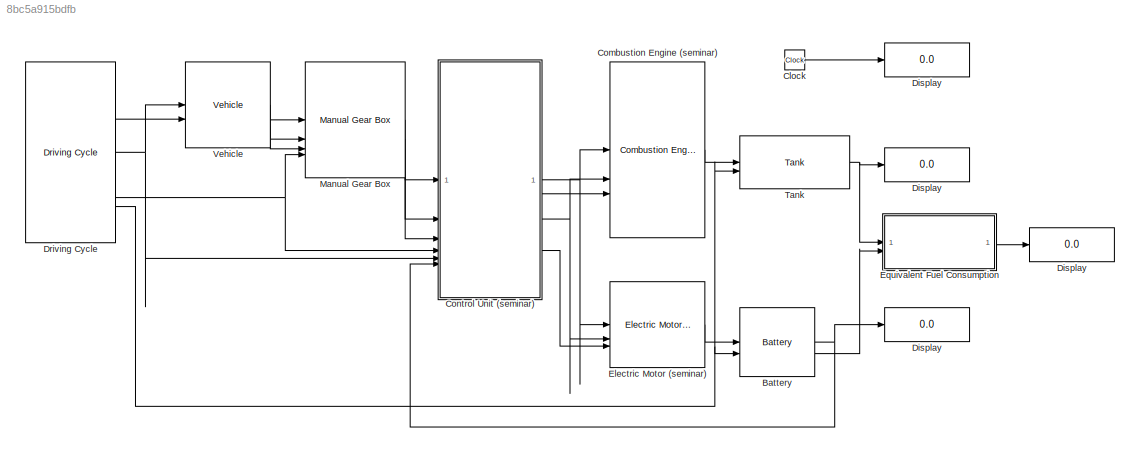
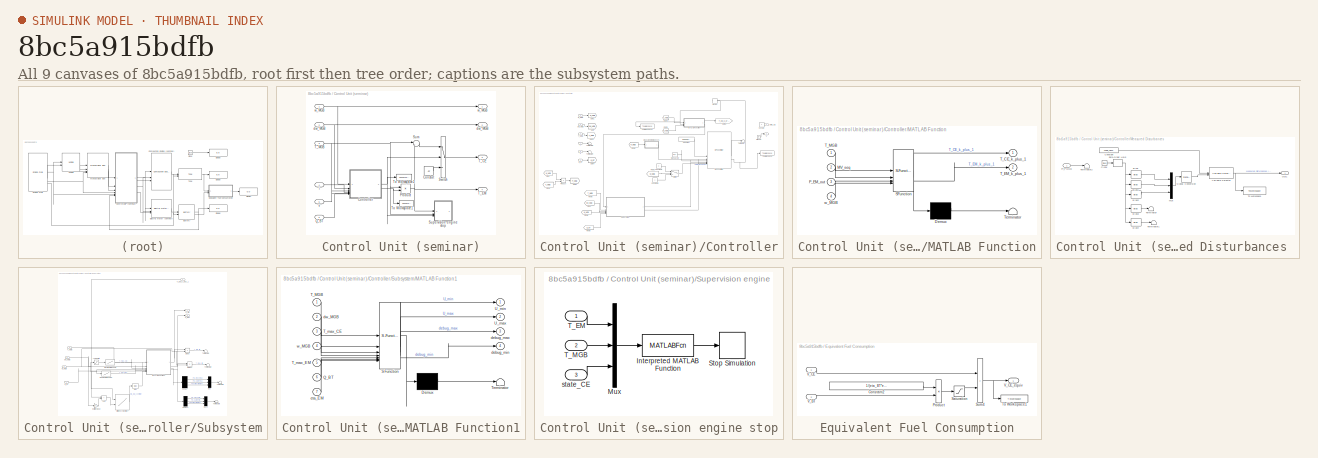
[diagram: thumbnail index - all 9 canvases of the model, root first then tree order]
MODEL slx_8bc5a915bdfb
KIND model
CONFIG AbsTol = auto
CONFIG EnableMultiTasking = on
CONFIG FixedStep = auto
CONFIG MaxStep = auto
CONFIG MinStep = auto
CONFIG RelTol = 1e-3
CONFIG SampleTimeConstraint = Unconstrained
CONFIG SolverName = VariableStepDiscrete
CONFIG StartTime = 0.0
CONFIG StopTime = 1220
BLOCK [Display]    Display   
  Decimation = 1
BLOCK [Display]   Display  
  Decimation = 1
BLOCK [Display]  Display 
  Decimation = 1
BLOCK [Reference] Battery  REF=qss_tb_library/Energy Buffer/Battery  (lib defined in mdl_a75e96b0ff2a, mdl_aad2a3137e65)
  SourceBlock = qss_tb_library/Energy Buffer/Battery
  SourceType = Battery
  Tag = battery
BLOCK [Clock] Clock
BLOCK [Reference] Combustion Engine (seminar)  REF=qss_tb_library/Energy Converter/Combustion Engine  (lib defined in mdl_a75e96b0ff2a, mdl_aad2a3137e65)
(consumption map)
  SourceBlock = qss_tb_library/Energy Converter/Combustion Engine\n(consumption map)
  SourceType = Combustion Engine (based on consumption map)
  Tag = combustion engine
BLOCK [SubSystem] Control Unit (seminar)
  Tag = control unit
BLOCK [Outport] Control Unit (seminar)/ dw_MGB 
  InitialOutput = 0
  Port = 2
BLOCK [Outport] Control Unit (seminar)/ w_MGB 
  InitialOutput = 0
BLOCK [Constant] Control Unit (seminar)/Constat
  Value = -inf
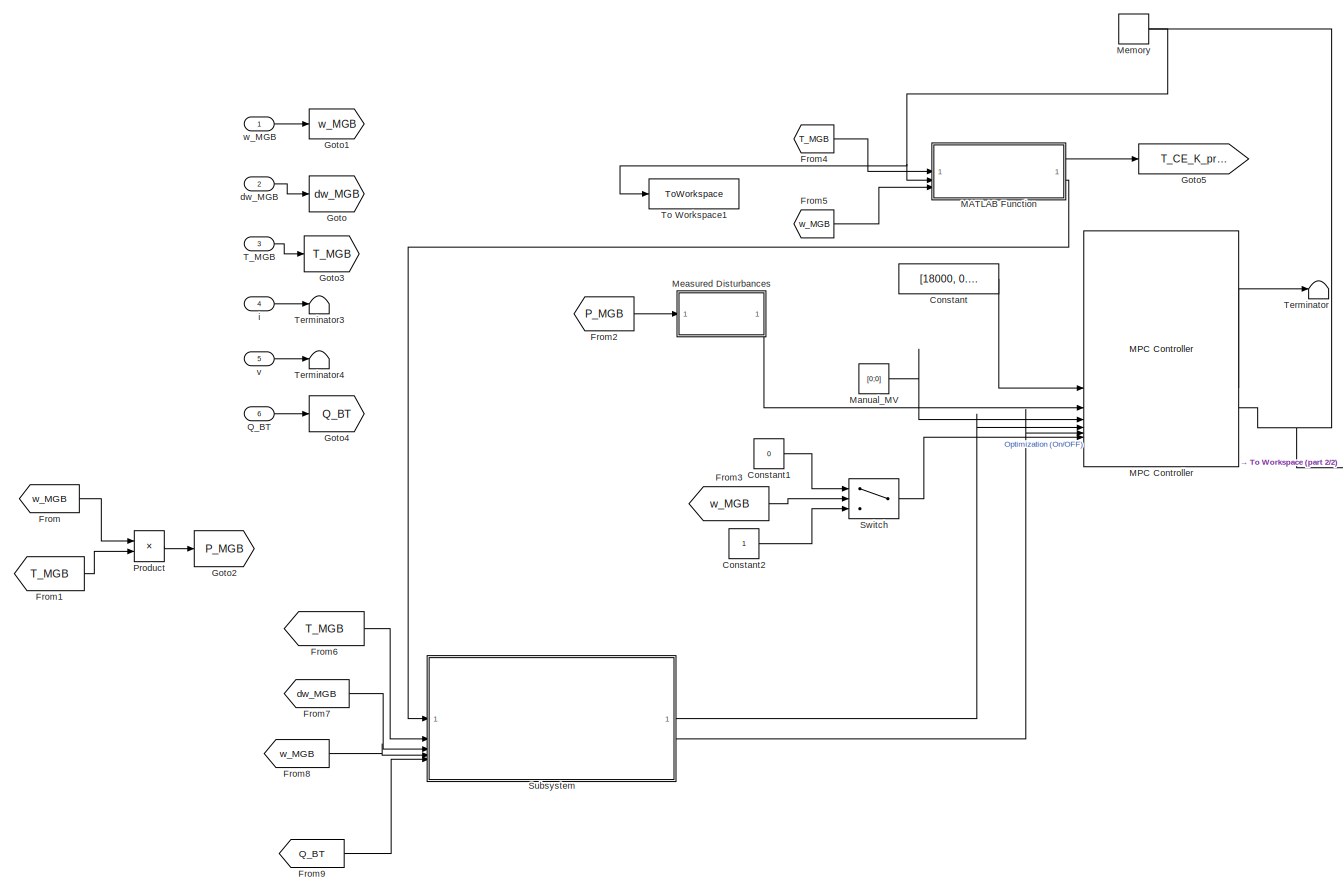
[diagram: Control Unit (seminar)/Controller - part 1/2, most of the canvas]
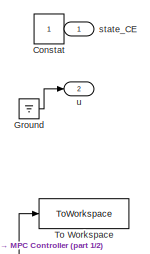
[diagram: Control Unit (seminar)/Controller - part 2/2, top right region]
BLOCK [SubSystem] Control Unit (seminar)/Controller
  TreatAsAtomicUnit = on
BLOCK [Constant] Control Unit (seminar)/Controller/Constant
  Value = [18000,  0.01]
BLOCK [Constant] Control Unit (seminar)/Controller/Constant1
  Value = 0
BLOCK [Constant] Control Unit (seminar)/Controller/Constant2
BLOCK [Constant] Control Unit (seminar)/Controller/Constat
BLOCK [From] Control Unit (seminar)/Controller/From
  GotoTag = w_MGB
BLOCK [From] Control Unit (seminar)/Controller/From1
  GotoTag = T_MGB
BLOCK [From] Control Unit (seminar)/Controller/From2
  GotoTag = P_MGB
BLOCK [From] Control Unit (seminar)/Controller/From3
  GotoTag = w_MGB
BLOCK [From] Control Unit (seminar)/Controller/From4
  GotoTag = T_MGB
BLOCK [From] Control Unit (seminar)/Controller/From5
  GotoTag = w_MGB
BLOCK [From] Control Unit (seminar)/Controller/From6
  GotoTag = T_MGB
BLOCK [From] Control Unit (seminar)/Controller/From7
  GotoTag = dw_MGB
BLOCK [From] Control Unit (seminar)/Controller/From8
  GotoTag = w_MGB
BLOCK [From] Control Unit (seminar)/Controller/From9
  GotoTag = Q_BT
BLOCK [Goto] Control Unit (seminar)/Controller/Goto
  GotoTag = dw_MGB
BLOCK [Goto] Control Unit (seminar)/Controller/Goto1
  GotoTag = w_MGB
BLOCK [Goto] Control Unit (seminar)/Controller/Goto2
  GotoTag = P_MGB
BLOCK [Goto] Control Unit (seminar)/Controller/Goto3
  GotoTag = T_MGB
BLOCK [Goto] Control Unit (seminar)/Controller/Goto4
  GotoTag = Q_BT
BLOCK [Goto] Control Unit (seminar)/Controller/Goto5
  GotoTag = T_CE_K_predicted
BLOCK [Ground] Control Unit (seminar)/Controller/Ground
BLOCK [SubSystem] Control Unit (seminar)/Controller/MATLAB Function
  ErrorFcn = Stateflow.Translate.translate
  PermitHierarchicalResolution = ExplicitOnly
  SFBlockType = MATLAB Function
  TreatAsAtomicUnit = on
BLOCK [Demux] Control Unit (seminar)/Controller/MATLAB Function/ Demux 
  Outputs = 1
BLOCK [S-Function] Control Unit (seminar)/Controller/MATLAB Function/ SFunction 
  EnableBusSupport = off
  FunctionName = sf_sfun
  PortCounts = [4 3]
  SFcnIsStateOwnerBlock = off
  SFunctionDeploymentMode = off
  Tag = Stateflow S-Function 2
BLOCK [Terminator] Control Unit (seminar)/Controller/MATLAB Function/ Terminator 
BLOCK [Inport] Control Unit (seminar)/Controller/MATLAB Function/MV_seq
  Port = 2
BLOCK [Inport] Control Unit (seminar)/Controller/MATLAB Function/P_EM_out
  Port = 3
BLOCK [Outport] Control Unit (seminar)/Controller/MATLAB Function/T_CE_k_plus_1
BLOCK [Outport] Control Unit (seminar)/Controller/MATLAB Function/T_EM_k_plus_1
  Port = 2
BLOCK [Inport] Control Unit (seminar)/Controller/MATLAB Function/T_MGB
BLOCK [Inport] Control Unit (seminar)/Controller/MATLAB Function/w_MGB
  Port = 4
BLOCK [Reference] Control Unit (seminar)/Controller/MPC Controller  REF=mpclib/MPC Controller  (lib defined in mdl_ae329e0e0455)
  SCDEnableBlockLinearizationSpecification = on
  SourceBlock = mpclib/MPC Controller
  SourceType = MPC
BLOCK [Constant] Control Unit (seminar)/Controller/Manual_MV
  Value = [0;0]
  VectorParams1D = off
BLOCK [SubSystem] Control Unit (seminar)/Controller/Measured Disturbances 
BLOCK [Bias] Control Unit (seminar)/Controller/Measured Disturbances /Bias
  Bias = 1
  SaturateOnIntegerOverflow = off
BLOCK [Bias] Control Unit (seminar)/Controller/Measured Disturbances /Bias1
  Bias = 2
  SaturateOnIntegerOverflow = off
BLOCK [Bias] Control Unit (seminar)/Controller/Measured Disturbances /Bias2
  Bias = 3
  SaturateOnIntegerOverflow = off
BLOCK [Bias] Control Unit (seminar)/Controller/Measured Disturbances /Bias3
  Bias = 4
  SaturateOnIntegerOverflow = off
BLOCK [Bias] Control Unit (seminar)/Controller/Measured Disturbances /Bias4
  Bias = 5
  SaturateOnIntegerOverflow = off
BLOCK [Clock] Control Unit (seminar)/Controller/Measured Disturbances /Clock
  Decimation = 1
BLOCK [Constant] Control Unit (seminar)/Controller/Measured Disturbances /Constant
  Value = PMGB_NEDC
BLOCK [Inport] Control Unit (seminar)/Controller/Measured Disturbances /FT_PMGB
BLOCK [Mux] Control Unit (seminar)/Controller/Measured Disturbances /Mux
  DisplayOption = bar
  Inputs = 3
BLOCK [Outport] Control Unit (seminar)/Controller/Measured Disturbances /Out1
BLOCK [SignalConversion] Control Unit (seminar)/Controller/Measured Disturbances /Signal Conversion
  OverrideOpt = off
BLOCK [Terminator] Control Unit (seminar)/Controller/Measured Disturbances /Terminator
BLOCK [Terminator] Control Unit (seminar)/Controller/Measured Disturbances /Terminator1
BLOCK [Terminator] Control Unit (seminar)/Controller/Measured Disturbances /Terminator2
BLOCK [ToWorkspace] Control Unit (seminar)/Controller/Measured Disturbances /To Workspace
  FixptAsFi = on
  MaxDataPoints = inf
  SampleTime = -1
  SaveFormat = Timeseries
  VariableName = simout
BLOCK [Reference] Control Unit (seminar)/Controller/Measured Disturbances /Variable Selector  REF=dspindex/Variable
Selector
  SourceBlock = dspindex/Variable\nSelector
  SourceType = Variable Selector
BLOCK [ZeroOrderHold] Control Unit (seminar)/Controller/Measured Disturbances /Zero-Order Hold
  SampleTime = -1
BLOCK [Memory] Control Unit (seminar)/Controller/Memory
BLOCK [Product] Control Unit (seminar)/Controller/Product
BLOCK [Inport] Control Unit (seminar)/Controller/Q_BT
  Port = 6
BLOCK [SubSystem] Control Unit (seminar)/Controller/Subsystem
BLOCK [Sum] Control Unit (seminar)/Controller/Subsystem/Add
  IconShape = rectangular
BLOCK [Bias] Control Unit (seminar)/Controller/Subsystem/Bias
  Bias = 0.15
  SaturateOnIntegerOverflow = off
BLOCK [Demux] Control Unit (seminar)/Controller/Subsystem/Demux
  Outputs = 3
BLOCK [Demux] Control Unit (seminar)/Controller/Subsystem/Demux1
  Outputs = 3
BLOCK [Product] Control Unit (seminar)/Controller/Subsystem/Divide
  Inputs = */
BLOCK [Product] Control Unit (seminar)/Controller/Subsystem/Divide1
  Inputs = */
BLOCK [Lookup2D] Control Unit (seminar)/Controller/Subsystem/Efficiency eta = f(w, T)
  ColumnIndex = T_EM_col
  InputSameDT = off
  RowIndex = w_EM_row
  Table = eta_EM_map
BLOCK [Gain] Control Unit (seminar)/Controller/Subsystem/Inertial Torque
  Gain = 0.1
BLOCK [Saturate] Control Unit (seminar)/Controller/Subsystem/Lower Limit
  LowerLimit = 105
  UpperLimit = inf
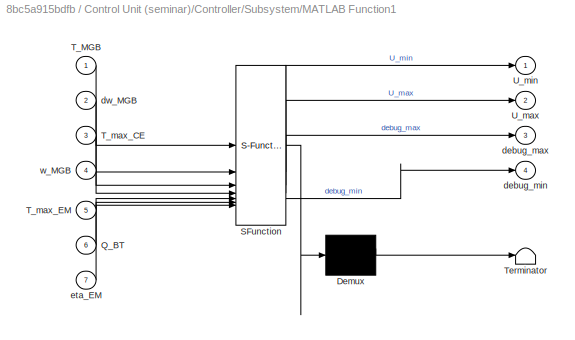
BLOCK [SubSystem] Control Unit (seminar)/Controller/Subsystem/MATLAB Function1
  ErrorFcn = Stateflow.Translate.translate
  PermitHierarchicalResolution = ExplicitOnly
  SFBlockType = MATLAB Function
  TreatAsAtomicUnit = on
BLOCK [Demux] Control Unit (seminar)/Controller/Subsystem/MATLAB Function1/ Demux 
  Outputs = 1
BLOCK [S-Function] Control Unit (seminar)/Controller/Subsystem/MATLAB Function1/ SFunction 
  EnableBusSupport = off
  FunctionName = sf_sfun
  PortCounts = [7 5]
  SFcnIsStateOwnerBlock = off
  SFunctionDeploymentMode = off
  Tag = Stateflow S-Function 1
BLOCK [Terminator] Control Unit (seminar)/Controller/Subsystem/MATLAB Function1/ Terminator 
BLOCK [Inport] Control Unit (seminar)/Controller/Subsystem/MATLAB Function1/Q_BT
  Port = 6
BLOCK [Inport] Control Unit (seminar)/Controller/Subsystem/MATLAB Function1/T_MGB
BLOCK [Inport] Control Unit (seminar)/Controller/Subsystem/MATLAB Function1/T_max_CE
  Port = 3
BLOCK [Inport] Control Unit (seminar)/Controller/Subsystem/MATLAB Function1/T_max_EM
  Port = 5
BLOCK [Outport] Control Unit (seminar)/Controller/Subsystem/MATLAB Function1/U_max
  Port = 2
BLOCK [Outport] Control Unit (seminar)/Controller/Subsystem/MATLAB Function1/U_min
BLOCK [Outport] Control Unit (seminar)/Controller/Subsystem/MATLAB Function1/debug_max
  Port = 3
BLOCK [Outport] Control Unit (seminar)/Controller/Subsystem/MATLAB Function1/debug_min
  Port = 4
BLOCK [Inport] Control Unit (seminar)/Controller/Subsystem/MATLAB Function1/dw_MGB
  Port = 2
BLOCK [Inport] Control Unit (seminar)/Controller/Subsystem/MATLAB Function1/eta_EM
  Port = 7
BLOCK [Inport] Control Unit (seminar)/Controller/Subsystem/MATLAB Function1/w_MGB
  Port = 4
BLOCK [Lookup] Control Unit (seminar)/Controller/Subsystem/Maximum torque CE
  InputValues = w_CE_max
  Table = T_CE_max
BLOCK [Lookup] Control Unit (seminar)/Controller/Subsystem/Maximum torque EM
  InputValues = w_EM_row
  Table = T_EM_max
BLOCK [Mux] Control Unit (seminar)/Controller/Subsystem/Mux
  DisplayOption = bar
  Inputs = 3
BLOCK [Mux] Control Unit (seminar)/Controller/Subsystem/Mux1
  DisplayOption = bar
  Inputs = 3
BLOCK [Inport] Control Unit (seminar)/Controller/Subsystem/Q_BT
  Port = 5
BLOCK [Inport] Control Unit (seminar)/Controller/Subsystem/T_EM_k_plus_1
BLOCK [Inport] Control Unit (seminar)/Controller/Subsystem/T_MGB
  Port = 2
BLOCK [Terminator] Control Unit (seminar)/Controller/Subsystem/Terminator1
BLOCK [Terminator] Control Unit (seminar)/Controller/Subsystem/Terminator2
BLOCK [Terminator] Control Unit (seminar)/Controller/Subsystem/Terminator5
BLOCK [Terminator] Control Unit (seminar)/Controller/Subsystem/Terminator6
BLOCK [Outport] Control Unit (seminar)/Controller/Subsystem/U_max
  Port = 2
BLOCK [Outport] Control Unit (seminar)/Controller/Subsystem/U_min
BLOCK [Inport] Control Unit (seminar)/Controller/Subsystem/dw_MGB
  Port = 3
BLOCK [Inport] Control Unit (seminar)/Controller/Subsystem/w_MGB
  Port = 4
BLOCK [Switch] Control Unit (seminar)/Controller/Switch
  Criteria = u2 ~= 0
  InputSameDT = off
  SaturateOnIntegerOverflow = off
BLOCK [Inport] Control Unit (seminar)/Controller/T_MGB
  Port = 3
BLOCK [Terminator] Control Unit (seminar)/Controller/Terminator
BLOCK [Terminator] Control Unit (seminar)/Controller/Terminator3
BLOCK [Terminator] Control Unit (seminar)/Controller/Terminator4
BLOCK [ToWorkspace] Control Unit (seminar)/Controller/To Workspace
  FixptAsFi = on
  MaxDataPoints = inf
  SampleTime = -1
  SaveFormat = Timeseries
  VariableName = mv_sequence
BLOCK [ToWorkspace] Control Unit (seminar)/Controller/To Workspace1
  FixptAsFi = on
  MaxDataPoints = inf
  SampleTime = -1
  SaveFormat = Timeseries
  VariableName = mv_sequence_delay
BLOCK [Inport] Control Unit (seminar)/Controller/dw_MGB
  Port = 2
BLOCK [Inport] Control Unit (seminar)/Controller/i
  Port = 4
BLOCK [Outport] Control Unit (seminar)/Controller/state_CE
  InitialOutput = 0
BLOCK [Outport] Control Unit (seminar)/Controller/u
  InitialOutput = 0
  Port = 2
BLOCK [Inport] Control Unit (seminar)/Controller/v
  Port = 5
BLOCK [Inport] Control Unit (seminar)/Controller/w_MGB
BLOCK [Product] Control Unit (seminar)/Product
  RndMeth = Zero
BLOCK [Inport] Control Unit (seminar)/Q_BT
  Port = 6
BLOCK [Sum] Control Unit (seminar)/Sum
  Inputs = |+-
BLOCK [SubSystem] Control Unit (seminar)/Supervision engine stop
BLOCK [MATLABFcn] Control Unit (seminar)/Supervision engine stop/Interpreted MATLAB Function
  MATLABFcn = supervision_engine_stop
BLOCK [Mux] Control Unit (seminar)/Supervision engine stop/Mux
  DisplayOption = bar
  Inputs = 3
BLOCK [Stop] Control Unit (seminar)/Supervision engine stop/Stop Simulation
BLOCK [Inport] Control Unit (seminar)/Supervision engine stop/T_EM
BLOCK [Inport] Control Unit (seminar)/Supervision engine stop/T_MGB
  Port = 2
BLOCK [Inport] Control Unit (seminar)/Supervision engine stop/state_CE
  Port = 3
BLOCK [Switch] Control Unit (seminar)/Switch
  InputSameDT = off
  SaturateOnIntegerOverflow = off
  Threshold = 0.5
BLOCK [Outport] Control Unit (seminar)/T_CE
  InitialOutput = 0
  Port = 3
BLOCK [Outport] Control Unit (seminar)/T_EM
  InitialOutput = 0
  Port = 4
BLOCK [Inport] Control Unit (seminar)/T_MGB
  Port = 3
BLOCK [ToWorkspace] Control Unit (seminar)/To Workspace1
  MaxDataPoints = inf
  NameLocation = top
  SampleTime = -1
  VariableName = u
BLOCK [ToWorkspace] Control Unit (seminar)/To Workspace2
  MaxDataPoints = inf
  NameLocation = top
  SampleTime = -1
  VariableName = state_CE
BLOCK [Inport] Control Unit (seminar)/dw_MGB
  Port = 2
BLOCK [Inport] Control Unit (seminar)/i
  Port = 4
BLOCK [Inport] Control Unit (seminar)/v
  Port = 5
BLOCK [Inport] Control Unit (seminar)/w_MGB
BLOCK [Display] Display
  Decimation = 1
BLOCK [Reference] Driving Cycle  REF=qss_tb_library/Driving Cycle/Driving Cycle  (lib defined in mdl_a75e96b0ff2a, mdl_aad2a3137e65)
  SourceBlock = qss_tb_library/Driving Cycle/Driving Cycle
  SourceType = Driving Cycle
  Tag = cycle
BLOCK [Reference] Electric Motor (seminar)  REF=qss_tb_library/Energy Converter/Electric Motor  (lib defined in mdl_a75e96b0ff2a, mdl_aad2a3137e65)
(seminar)
  SourceBlock = qss_tb_library/Energy Converter/Electric Motor\n(seminar)
  SourceType = Electric Motor
BLOCK [SubSystem] Equivalent Fuel Consumption
BLOCK [Constant] Equivalent Fuel Consumption/Constant2
  Value = 1/(eta_BT*eta_EM*eta_CE*H_u/(1000*3600)*rho_f)
BLOCK [Product] Equivalent Fuel Consumption/Product
  RndMeth = Zero
BLOCK [Saturate] Equivalent Fuel Consumption/Saturation
  LowerLimit = 0
  UpperLimit = inf
BLOCK [Sum] Equivalent Fuel Consumption/Sum4
  IconShape = rectangular
  InputSameDT = on
  OutDataTypeStr = Inherit: Same as first input
  SaturateOnIntegerOverflow = on
BLOCK [ToWorkspace] Equivalent Fuel Consumption/To Workspace1
  MaxDataPoints = inf
  NameLocation = top
  SampleTime = -1
  VariableName = V_CE_equiv
BLOCK [Inport] Equivalent Fuel Consumption/V_BT
  Port = 2
BLOCK [Inport] Equivalent Fuel Consumption/V_CE
BLOCK [Outport] Equivalent Fuel Consumption/V_CE_equiv
BLOCK [Reference] Manual Gear Box  REF=qss_tb_library/Gear System/Manual Gear Box  (lib defined in mdl_a75e96b0ff2a, mdl_aad2a3137e65)
  SourceBlock = qss_tb_library/Gear System/Manual Gear Box
  SourceType = Manual Gear Box
  Tag = transmission
BLOCK [Reference] Tank  REF=qss_tb_library/Energy Source/Tank  (lib defined in mdl_a75e96b0ff2a, mdl_aad2a3137e65)
  SourceBlock = qss_tb_library/Energy Source/Tank
  SourceType = Tank
  Tag = tank
BLOCK [Reference] Vehicle  REF=qss_tb_library/Vehicle/Vehicle  (lib defined in mdl_a75e96b0ff2a, mdl_aad2a3137e65)
  SourceBlock = qss_tb_library/Vehicle/Vehicle
  SourceType = Vehicle
  Tag = vehicle
NET Battery:1 ->   Display  :1, Control Unit (seminar):6
LINE Battery:2 -> Equivalent Fuel Consumption:2
LINE Clock:1 ->  Display :1
LINE Combustion Engine (seminar):1 -> Tank:1
LINE Control Unit (seminar)/Constat:1 -> Control Unit (seminar)/Switch:3
LINE Control Unit (seminar)/Controller/Constant1:1 -> Control Unit (seminar)/Controller/Switch:1
LINE Control Unit (seminar)/Controller/Constant2:1 -> Control Unit (seminar)/Controller/Switch:3
LINE Control Unit (seminar)/Controller/Constant:1 -> Control Unit (seminar)/Controller/MPC Controller:2
LINE Control Unit (seminar)/Controller/Constat:1 -> Control Unit (seminar)/Controller/state_CE:1
LINE Control Unit (seminar)/Controller/From1:1 -> Control Unit (seminar)/Controller/Product:2
LINE Control Unit (seminar)/Controller/From2:1 -> Control Unit (seminar)/Controller/Measured Disturbances :1
LINE Control Unit (seminar)/Controller/From3:1 -> Control Unit (seminar)/Controller/Switch:2
LINE Control Unit (seminar)/Controller/From4:1 -> Control Unit (seminar)/Controller/MATLAB Function:1
LINE Control Unit (seminar)/Controller/From5:1 -> Control Unit (seminar)/Controller/MATLAB Function:4
LINE Control Unit (seminar)/Controller/From6:1 -> Control Unit (seminar)/Controller/Subsystem:2
LINE Control Unit (seminar)/Controller/From7:1 -> Control Unit (seminar)/Controller/Subsystem:3
LINE Control Unit (seminar)/Controller/From8:1 -> Control Unit (seminar)/Controller/Subsystem:4
LINE Control Unit (seminar)/Controller/From9:1 -> Control Unit (seminar)/Controller/Subsystem:5
LINE Control Unit (seminar)/Controller/From:1 -> Control Unit (seminar)/Controller/Product:1
LINE Control Unit (seminar)/Controller/Ground:1 -> Control Unit (seminar)/Controller/u:1
LINE Control Unit (seminar)/Controller/MATLAB Function:1 -> Control Unit (seminar)/Controller/Goto5:1
LINE Control Unit (seminar)/Controller/MATLAB Function:2 -> Control Unit (seminar)/Controller/Subsystem:1
LINE Control Unit (seminar)/Controller/MPC Controller:2 -> Control Unit (seminar)/Controller/Terminator:1
NET Control Unit (seminar)/Controller/MPC Controller:3 -> Control Unit (seminar)/Controller/Memory:1, Control Unit (seminar)/Controller/To Workspace:1
LINE Control Unit (seminar)/Controller/Manual_MV:1 -> Control Unit (seminar)/Controller/MPC Controller:4
LINE Control Unit (seminar)/Controller/Measured Disturbances /Bias1:1 -> Control Unit (seminar)/Controller/Measured Disturbances /Mux:2
LINE Control Unit (seminar)/Controller/Measured Disturbances /Bias2:1 -> Control Unit (seminar)/Controller/Measured Disturbances /Mux:3
LINE Control Unit (seminar)/Controller/Measured Disturbances /Bias3:1 -> Control Unit (seminar)/Controller/Measured Disturbances /Terminator:1
LINE Control Unit (seminar)/Controller/Measured Disturbances /Bias4:1 -> Control Unit (seminar)/Controller/Measured Disturbances /Terminator1:1
LINE Control Unit (seminar)/Controller/Measured Disturbances /Bias:1 -> Control Unit (seminar)/Controller/Measured Disturbances /Mux:1
LINE Control Unit (seminar)/Controller/Measured Disturbances /Clock:1 -> Control Unit (seminar)/Controller/Measured Disturbances /Zero-Order Hold:1
LINE Control Unit (seminar)/Controller/Measured Disturbances /Constant:1 -> Control Unit (seminar)/Controller/Measured Disturbances /Variable Selector:1
LINE Control Unit (seminar)/Controller/Measured Disturbances /FT_PMGB:1 -> Control Unit (seminar)/Controller/Measured Disturbances /Terminator2:1
LINE Control Unit (seminar)/Controller/Measured Disturbances /Mux:1 -> Control Unit (seminar)/Controller/Measured Disturbances /Signal Conversion:1
LINE Control Unit (seminar)/Controller/Measured Disturbances /Signal Conversion:1 -> Control Unit (seminar)/Controller/Measured Disturbances /Variable Selector:2
NET Control Unit (seminar)/Controller/Measured Disturbances /Variable Selector:1 -> Control Unit (seminar)/Controller/Measured Disturbances /Out1:1, Control Unit (seminar)/Controller/Measured Disturbances /To Workspace:1
NET Control Unit (seminar)/Controller/Measured Disturbances /Zero-Order Hold:1 -> Control Unit (seminar)/Controller/Measured Disturbances /Bias1:1, Control Unit (seminar)/Controller/Measured Disturbances /Bias2:1, Control Unit (seminar)/Controller/Measured Disturbances /Bias3:1, Control Unit (seminar)/Controller/Measured Disturbances /Bias4:1, Control Unit (seminar)/Controller/Measured Disturbances /Bias:1
LINE Control Unit (seminar)/Controller/Measured Disturbances :1 -> Control Unit (seminar)/Controller/MPC Controller:3
NET Control Unit (seminar)/Controller/Memory:1 -> Control Unit (seminar)/Controller/MATLAB Function:2, Control Unit (seminar)/Controller/To Workspace1:1
LINE Control Unit (seminar)/Controller/Product:1 -> Control Unit (seminar)/Controller/Goto2:1
LINE Control Unit (seminar)/Controller/Q_BT:1 -> Control Unit (seminar)/Controller/Goto4:1
LINE Control Unit (seminar)/Controller/Subsystem/Add:1 -> Control Unit (seminar)/Controller/Subsystem/Efficiency eta = f(w, T):2
LINE Control Unit (seminar)/Controller/Subsystem/Bias:1 -> Control Unit (seminar)/Controller/Subsystem/MATLAB Function1:7
LINE Control Unit (seminar)/Controller/Subsystem/Demux1:1 -> Control Unit (seminar)/Controller/Subsystem/Mux1:1
LINE Control Unit (seminar)/Controller/Subsystem/Demux1:2 -> Control Unit (seminar)/Controller/Subsystem/Mux1:2
LINE Control Unit (seminar)/Controller/Subsystem/Demux1:3 -> Control Unit (seminar)/Controller/Subsystem/Mux1:3
LINE Control Unit (seminar)/Controller/Subsystem/Demux:1 -> Control Unit (seminar)/Controller/Subsystem/Mux:1
LINE Control Unit (seminar)/Controller/Subsystem/Demux:2 -> Control Unit (seminar)/Controller/Subsystem/Mux:2
LINE Control Unit (seminar)/Controller/Subsystem/Demux:3 -> Control Unit (seminar)/Controller/Subsystem/Mux:3
LINE Control Unit (seminar)/Controller/Subsystem/Divide1:1 -> Control Unit (seminar)/Controller/Subsystem/Terminator2:1
LINE Control Unit (seminar)/Controller/Subsystem/Divide:1 -> Control Unit (seminar)/Controller/Subsystem/Terminator1:1
LINE Control Unit (seminar)/Controller/Subsystem/Efficiency eta = f(w, T):1 -> Control Unit (seminar)/Controller/Subsystem/Bias:1
LINE Control Unit (seminar)/Controller/Subsystem/Inertial Torque:1 -> Control Unit (seminar)/Controller/Subsystem/Add:2
LINE Control Unit (seminar)/Controller/Subsystem/Lower Limit:1 -> Control Unit (seminar)/Controller/Subsystem/Maximum torque CE:1
NET Control Unit (seminar)/Controller/Subsystem/MATLAB Function1:1 -> Control Unit (seminar)/Controller/Subsystem/Divide:1, Control Unit (seminar)/Controller/Subsystem/U_min:1
NET Control Unit (seminar)/Controller/Subsystem/MATLAB Function1:2 -> Control Unit (seminar)/Controller/Subsystem/Divide1:1, Control Unit (seminar)/Controller/Subsystem/U_max:1
LINE Control Unit (seminar)/Controller/Subsystem/MATLAB Function1:3 -> Control Unit (seminar)/Controller/Subsystem/Demux:1
LINE Control Unit (seminar)/Controller/Subsystem/MATLAB Function1:4 -> Control Unit (seminar)/Controller/Subsystem/Demux1:1
LINE Control Unit (seminar)/Controller/Subsystem/Maximum torque CE:1 -> Control Unit (seminar)/Controller/Subsystem/MATLAB Function1:3
LINE Control Unit (seminar)/Controller/Subsystem/Maximum torque EM:1 -> Control Unit (seminar)/Controller/Subsystem/MATLAB Function1:5
LINE Control Unit (seminar)/Controller/Subsystem/Mux1:1 -> Control Unit (seminar)/Controller/Subsystem/Terminator6:1
LINE Control Unit (seminar)/Controller/Subsystem/Mux:1 -> Control Unit (seminar)/Controller/Subsystem/Terminator5:1
LINE Control Unit (seminar)/Controller/Subsystem/Q_BT:1 -> Control Unit (seminar)/Controller/Subsystem/MATLAB Function1:6
LINE Control Unit (seminar)/Controller/Subsystem/T_EM_k_plus_1:1 -> Control Unit (seminar)/Controller/Subsystem/Add:1
LINE Control Unit (seminar)/Controller/Subsystem/T_MGB:1 -> Control Unit (seminar)/Controller/Subsystem/MATLAB Function1:1
NET Control Unit (seminar)/Controller/Subsystem/dw_MGB:1 -> Control Unit (seminar)/Controller/Subsystem/Inertial Torque:1, Control Unit (seminar)/Controller/Subsystem/MATLAB Function1:2
NET Control Unit (seminar)/Controller/Subsystem/w_MGB:1 -> Control Unit (seminar)/Controller/Subsystem/Divide1:2, Control Unit (seminar)/Controller/Subsystem/Divide:2, Control Unit (seminar)/Controller/Subsystem/Efficiency eta = f(w, T):1, Control Unit (seminar)/Controller/Subsystem/Lower Limit:1, Control Unit (seminar)/Controller/Subsystem/MATLAB Function1:4, Control Unit (seminar)/Controller/Subsystem/Maximum torque EM:1
LINE Control Unit (seminar)/Controller/Subsystem:1 -> Control Unit (seminar)/Controller/MPC Controller:5
LINE Control Unit (seminar)/Controller/Subsystem:2 -> Control Unit (seminar)/Controller/MPC Controller:6
LINE Control Unit (seminar)/Controller/Switch:1 -> Control Unit (seminar)/Controller/MPC Controller:7
LINE Control Unit (seminar)/Controller/T_MGB:1 -> Control Unit (seminar)/Controller/Goto3:1
LINE Control Unit (seminar)/Controller/dw_MGB:1 -> Control Unit (seminar)/Controller/Goto:1
LINE Control Unit (seminar)/Controller/i:1 -> Control Unit (seminar)/Controller/Terminator3:1
LINE Control Unit (seminar)/Controller/v:1 -> Control Unit (seminar)/Controller/Terminator4:1
LINE Control Unit (seminar)/Controller/w_MGB:1 -> Control Unit (seminar)/Controller/Goto1:1
NET Control Unit (seminar)/Controller:1 -> Control Unit (seminar)/Supervision engine stop:3, Control Unit (seminar)/Switch:2, Control Unit (seminar)/To Workspace2:1
NET Control Unit (seminar)/Controller:2 -> Control Unit (seminar)/Product:2, Control Unit (seminar)/To Workspace1:1
NET Control Unit (seminar)/Product:1 -> Control Unit (seminar)/Sum:2, Control Unit (seminar)/Supervision engine stop:1, Control Unit (seminar)/T_EM:1
LINE Control Unit (seminar)/Q_BT:1 -> Control Unit (seminar)/Controller:6
LINE Control Unit (seminar)/Sum:1 -> Control Unit (seminar)/Switch:1
LINE Control Unit (seminar)/Supervision engine stop/Interpreted MATLAB Function:1 -> Control Unit (seminar)/Supervision engine stop/Stop Simulation:1
LINE Control Unit (seminar)/Supervision engine stop/Mux:1 -> Control Unit (seminar)/Supervision engine stop/Interpreted MATLAB Function:1
LINE Control Unit (seminar)/Supervision engine stop/T_EM:1 -> Control Unit (seminar)/Supervision engine stop/Mux:1
LINE Control Unit (seminar)/Supervision engine stop/T_MGB:1 -> Control Unit (seminar)/Supervision engine stop/Mux:2
LINE Control Unit (seminar)/Supervision engine stop/state_CE:1 -> Control Unit (seminar)/Supervision engine stop/Mux:3
LINE Control Unit (seminar)/Switch:1 -> Control Unit (seminar)/T_CE:1
NET Control Unit (seminar)/T_MGB:1 -> Control Unit (seminar)/Controller:3, Control Unit (seminar)/Product:1, Control Unit (seminar)/Sum:1, Control Unit (seminar)/Supervision engine stop:2
NET Control Unit (seminar)/dw_MGB:1 -> Control Unit (seminar)/ dw_MGB :1, Control Unit (seminar)/Controller:2
LINE Control Unit (seminar)/i:1 -> Control Unit (seminar)/Controller:4
LINE Control Unit (seminar)/v:1 -> Control Unit (seminar)/Controller:5
NET Control Unit (seminar)/w_MGB:1 -> Control Unit (seminar)/ w_MGB :1, Control Unit (seminar)/Controller:1
NET Control Unit (seminar):1 -> Combustion Engine (seminar):1, Electric Motor (seminar):1
NET Control Unit (seminar):2 -> Combustion Engine (seminar):2, Electric Motor (seminar):2
LINE Control Unit (seminar):3 -> Combustion Engine (seminar):3
LINE Control Unit (seminar):4 -> Electric Motor (seminar):3
NET Driving Cycle:1 -> Control Unit (seminar):5, Vehicle:1
LINE Driving Cycle:2 -> Vehicle:2
NET Driving Cycle:3 -> Control Unit (seminar):4, Manual Gear Box:4
NET Driving Cycle:4 -> Battery:2, Tank:2
LINE Electric Motor (seminar):1 -> Battery:1
LINE Equivalent Fuel Consumption/Constant2:1 -> Equivalent Fuel Consumption/Product:1
LINE Equivalent Fuel Consumption/Product:1 -> Equivalent Fuel Consumption/Saturation:1
LINE Equivalent Fuel Consumption/Saturation:1 -> Equivalent Fuel Consumption/Sum4:2
NET Equivalent Fuel Consumption/Sum4:1 -> Equivalent Fuel Consumption/To Workspace1:1, Equivalent Fuel Consumption/V_CE_equiv:1
LINE Equivalent Fuel Consumption/V_BT:1 -> Equivalent Fuel Consumption/Product:2
LINE Equivalent Fuel Consumption/V_CE:1 -> Equivalent Fuel Consumption/Sum4:1
LINE Equivalent Fuel Consumption:1 ->    Display   :1
LINE Manual Gear Box:1 -> Control Unit (seminar):1
LINE Manual Gear Box:2 -> Control Unit (seminar):2
LINE Manual Gear Box:3 -> Control Unit (seminar):3
NET Tank:1 -> Display:1, Equivalent Fuel Consumption:1
LINE Vehicle:1 -> Manual Gear Box:1
LINE Vehicle:2 -> Manual Gear Box:2
LINE Vehicle:3 -> Manual Gear Box:3
note: NET lines group one-source signal fan-out (src -> all destinations, sorted); 1:1 wires keep LINE
CHART Control Unit
(seminar)/Controller/Subsystem/MATLAB Function1 states=1 transitions=1
  STATE_LABEL 'eML_blk_kernel()'
  STATE_LABEL 'SCRIPT:\nfunction [U_min,U_max,debug_max,debug_min] = Input_Constraints(T_MGB, dw_MGB, T_max_CE, w_MGB, T_max_EM, Q_BT, eta_EM)\n\n\ndelta_t = 1;\ndelta_p = delta_t * w_MGB;\ntheta_CE = 0.2;\ntheta_EM = 0.1;\n\n\n% Battery Parameters\nc_BT_E1     =  39;                          % Minimum battery voltage for discharging (13 cells, 3 V/cell, seminar)                 [V]\nc_BT_E2     =  0.013;\t\t\t\t\t    % Minimum ...<+2449ch>'
CHART Control Unit
(seminar)/Controller/MATLAB Function states=1 transitions=1
  STATE_LABEL 'eML_blk_kernel()'
  STATE_LABEL 'SCRIPT:\nfunction [T_CE_k_plus_1,T_EM_k_plus_1] = fcn(T_MGB, MV_seq,P_EM_out, w_MGB)\nT_EM_k_plus_1 = 0;\nPCE_K_plus_1 = MV_seq(2,2);\nPEM_K_plus_1 = MV_seq(2,1);\nif w_MGB > 105\n    T_CE_k_plus_1 = PCE_K_plus_1/w_MGB;\nelse\n    T_CE_k_plus_1 = 0;\nend\nif T_MGB >=0\n    if w_MGB == 0\n        T_EM_k_plus_1 = 0;\n    else \n        T_EM_k_plus_1 = PEM_K_plus_1/w_MGB;\n    end\nelse\n    if w_MGB ~= 0\n        T_E...<+55ch>'
CHART  states=0 transitions=0
CHART  states=0 transitions=0
